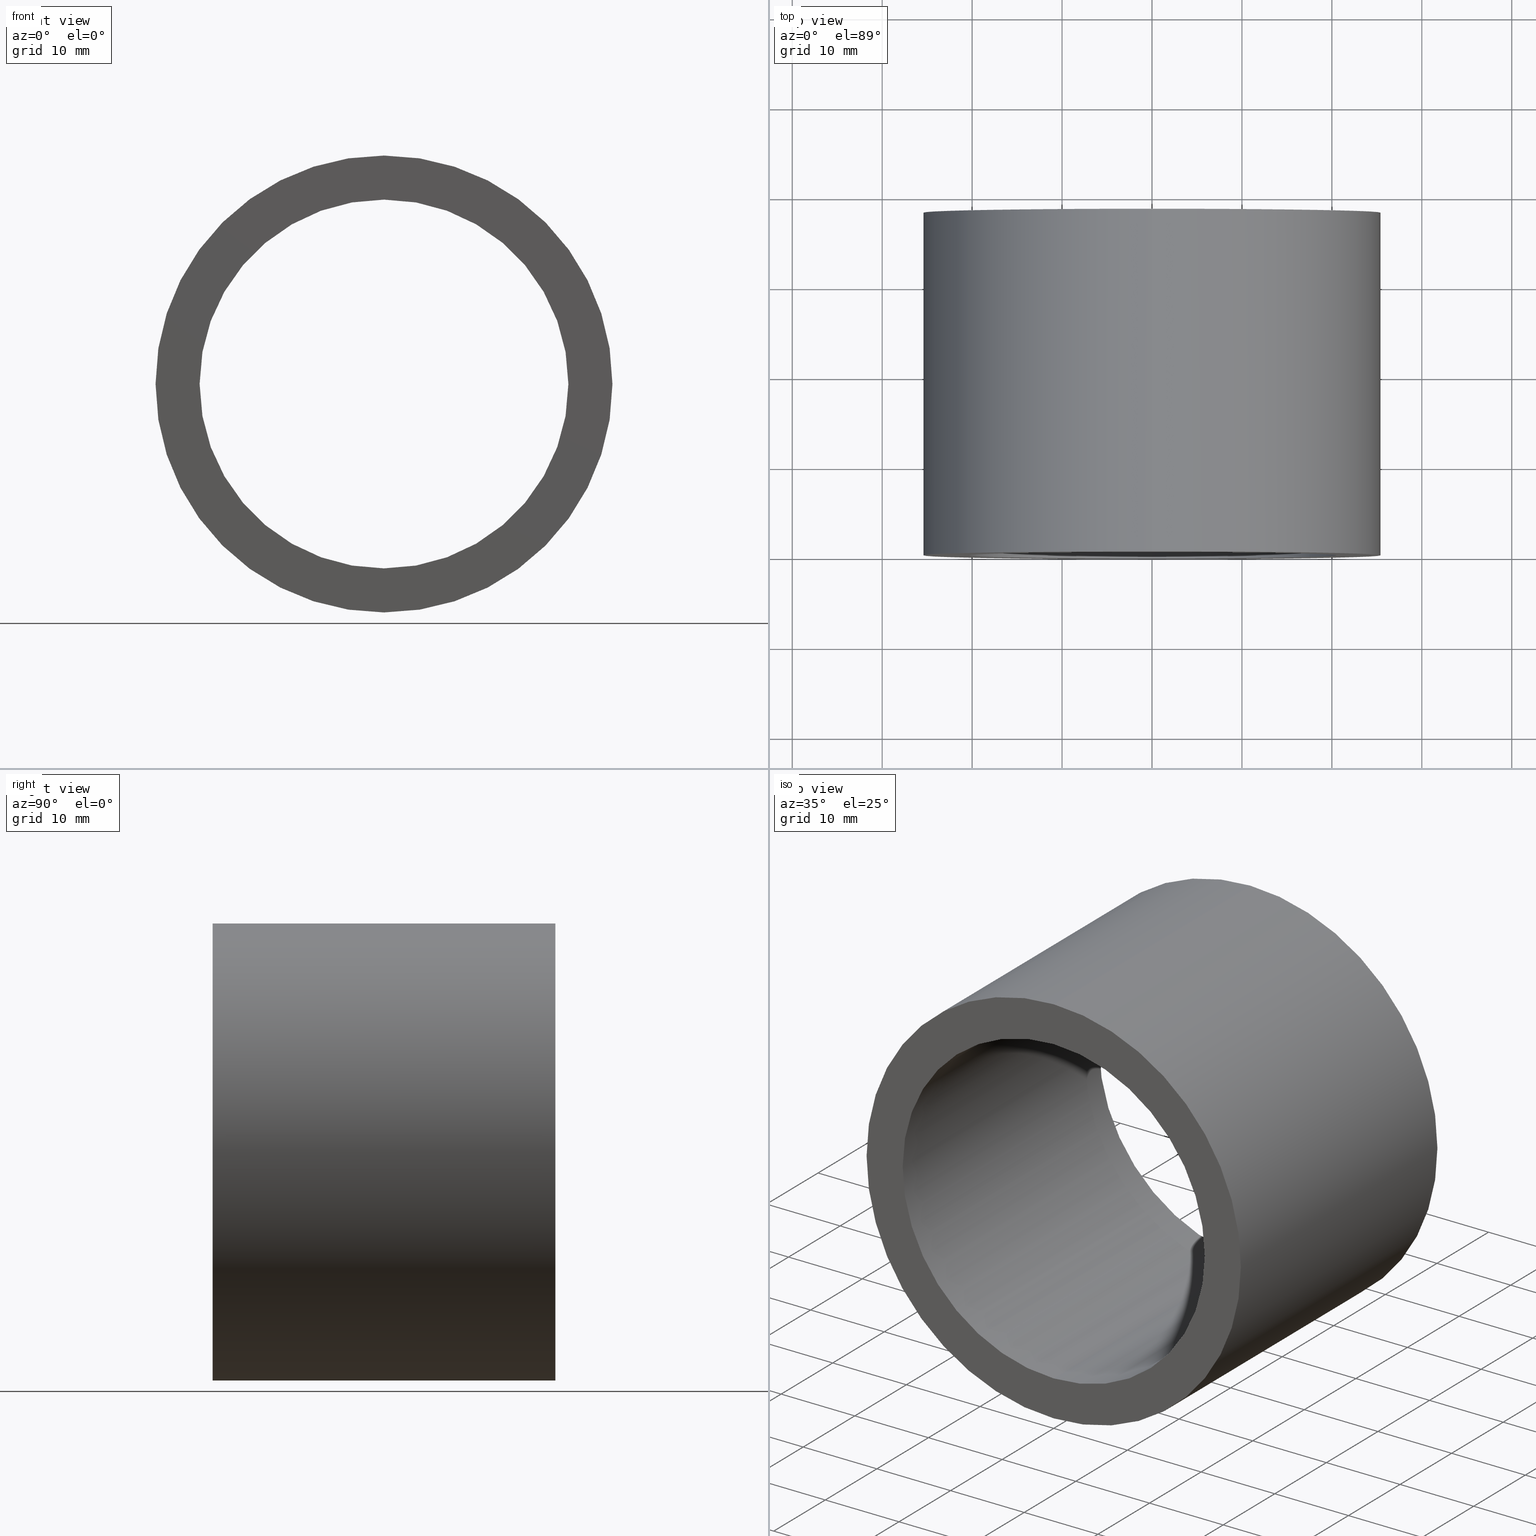
[diagram: canonical four-view strip — front | top / right | iso, engineering-drawing reading convention]
A machine part, canonical four-view strip (front | top / right | iso — engineering-drawing reading convention). The complete STEP part file that produces these views, byte-faithful:
ISO-10303-21;
HEADER;
FILE_DESCRIPTION (( 'STEP AP214' ),
    '1' );
FILE_NAME ('503030.STEP',
    '2019-09-05T07:01:35',
    ( '' ),
    ( '' ),
    'SwSTEP 2.0',
    'SolidWorks 2016',
    '' );
FILE_SCHEMA (( 'AUTOMOTIVE_DESIGN' ));
ENDSEC;

DATA;
#1 = CARTESIAN_POINT ( 'NONE',  ( 0.0000000000000000000, -2.775557561562891400E-014, 0.0000000000000000000 ) ) ;
#2 = FACE_OUTER_BOUND ( 'NONE', #161, .T. ) ;
#3 = SURFACE_STYLE_USAGE ( .BOTH. , #119 ) ;
#4 = UNCERTAINTY_MEASURE_WITH_UNIT (LENGTH_MEASURE( 1.000000000000000100E-005 ), #25, 'distance_accuracy_value', 'NONE');
#5 = MECHANICAL_DESIGN_GEOMETRIC_PRESENTATION_REPRESENTATION (  '', ( #158 ), #150 ) ;
#6 = ORIENTED_EDGE ( 'NONE', *, *, #76, .F. ) ;
#7 = EDGE_CURVE ( 'NONE', #56, #163, #204, .T. ) ;
#8 = ORIENTED_EDGE ( 'NONE', *, *, #162, .F. ) ;
#9 = STYLED_ITEM ( 'NONE', ( #105 ), #191 ) ;
#10 = DIRECTION ( 'NONE',  ( -0.0000000000000000000, 1.000000000000000000, -0.0000000000000000000 ) ) ;
#11 = PRESENTATION_LAYER_ASSIGNMENT (  '', '', ( #144 ) ) ;
#12 = UNCERTAINTY_MEASURE_WITH_UNIT (LENGTH_MEASURE( 1.000000000000000100E-005 ), #98, 'distance_accuracy_value', 'NONE');
#13 = DIRECTION ( 'NONE',  ( -0.0000000000000000000, 1.000000000000000000, -0.0000000000000000000 ) ) ;
#14 = FILL_AREA_STYLE ('',( #134 ) ) ;
#15 = ORIENTED_EDGE ( 'NONE', *, *, #71, .T. ) ;
#16 =( GEOMETRIC_REPRESENTATION_CONTEXT ( 3 ) GLOBAL_UNCERTAINTY_ASSIGNED_CONTEXT ( ( #63 ) ) GLOBAL_UNIT_ASSIGNED_CONTEXT ( ( #94, #64, #141 ) ) REPRESENTATION_CONTEXT ( 'NONE', 'WORKASPACE' ) );
#17 = DIRECTION ( 'NONE',  ( 0.0000000000000000000, 0.0000000000000000000, 1.000000000000000000 ) ) ;
#18 = SURFACE_STYLE_USAGE ( .BOTH. , #221 ) ;
#19 = DIRECTION ( 'NONE',  ( -0.0000000000000000000, 1.000000000000000000, -0.0000000000000000000 ) ) ;
#20 = DIRECTION ( 'NONE',  ( -0.0000000000000000000, 1.000000000000000000, -0.0000000000000000000 ) ) ;
#21 = PRESENTATION_LAYER_ASSIGNMENT (  '', '', ( #158 ) ) ;
#22 = FACE_OUTER_BOUND ( 'NONE', #62, .T. ) ;
#23 = DIRECTION ( 'NONE',  ( 1.000000000000000000, 0.0000000000000000000, 0.0000000000000000000 ) ) ;
#24 = APPLICATION_PROTOCOL_DEFINITION ( 'draft international standard', 'automotive_design', 1998, #143 ) ;
#25 =( LENGTH_UNIT ( ) NAMED_UNIT ( * ) SI_UNIT ( .MILLI., .METRE. ) );
#26 = COLOUR_RGB ( '',1.000000000000000000, 1.000000000000000000, 1.000000000000000000 ) ;
#27 =( GEOMETRIC_REPRESENTATION_CONTEXT ( 3 ) GLOBAL_UNCERTAINTY_ASSIGNED_CONTEXT ( ( #47 ) ) GLOBAL_UNIT_ASSIGNED_CONTEXT ( ( #40, #138, #95 ) ) REPRESENTATION_CONTEXT ( 'NONE', 'WORKASPACE' ) );
#28 = SURFACE_STYLE_FILL_AREA ( #153 ) ;
#29 = VERTEX_POINT ( 'NONE', #164 ) ;
#30 = VERTEX_POINT ( 'NONE', #151 ) ;
#31 = DIRECTION ( 'NONE',  ( -0.0000000000000000000, 1.000000000000000000, 0.0000000000000000000 ) ) ;
#32 = DIRECTION ( 'NONE',  ( -0.0000000000000000000, 1.000000000000000000, -0.0000000000000000000 ) ) ;
#33 = ORIENTED_EDGE ( 'NONE', *, *, #67, .T. ) ;
#34 = CARTESIAN_POINT ( 'NONE',  ( 20.50000000000002100, -1.424099456732195600E-014, 0.0000000000000000000 ) ) ;
#35 = SURFACE_SIDE_STYLE ('',( #28 ) ) ;
#36 = CARTESIAN_POINT ( 'NONE',  ( 0.0000000000000000000, -2.775557561562891400E-014, 0.0000000000000000000 ) ) ;
#37 =( NAMED_UNIT ( * ) SI_UNIT ( $, .STERADIAN. ) SOLID_ANGLE_UNIT ( ) );
#38 = DIRECTION ( 'NONE',  ( 0.0000000000000000000, 0.0000000000000000000, 1.000000000000000000 ) ) ;
#39 = DIRECTION ( 'NONE',  ( 0.0000000000000000000, 0.0000000000000000000, 1.000000000000000000 ) ) ;
#40 =( LENGTH_UNIT ( ) NAMED_UNIT ( * ) SI_UNIT ( .MILLI., .METRE. ) );
#41 =( GEOMETRIC_REPRESENTATION_CONTEXT ( 3 ) GLOBAL_UNCERTAINTY_ASSIGNED_CONTEXT ( ( #93 ) ) GLOBAL_UNIT_ASSIGNED_CONTEXT ( ( #55, #79, #193 ) ) REPRESENTATION_CONTEXT ( 'NONE', 'WORKASPACE' ) );
#42 = ORIENTED_EDGE ( 'NONE', *, *, #67, .F. ) ;
#43 = EDGE_CURVE ( 'NONE', #187, #56, #198, .T. ) ;
#44 = EDGE_LOOP ( 'NONE', ( #89, #87, #15, #102 ) ) ;
#45 = PRODUCT_DEFINITION_FORMATION_WITH_SPECIFIED_SOURCE ( '�κ�', '', #184, .NOT_KNOWN. ) ;
#46 = EDGE_LOOP ( 'NONE', ( #111, #207, #42, #156 ) ) ;
#47 = UNCERTAINTY_MEASURE_WITH_UNIT (LENGTH_MEASURE( 1.000000000000000100E-005 ), #40, 'distance_accuracy_value', 'NONE');
#48 = VERTEX_POINT ( 'NONE', #53 ) ;
#49 = DIRECTION ( 'NONE',  ( -0.0000000000000000000, 1.000000000000000000, -0.0000000000000000000 ) ) ;
#50 = FACE_OUTER_BOUND ( 'NONE', #46, .T. ) ;
#51 = ORIENTED_EDGE ( 'NONE', *, *, #43, .T. ) ;
#52 = AXIS2_PLACEMENT_3D ( 'NONE', #136, #243, #116 ) ;
#53 = CARTESIAN_POINT ( 'NONE',  ( 3.110602869834279600E-015, 38.09999999999999400, -25.40000000000002000 ) ) ;
#54 = DIRECTION ( 'NONE',  ( -0.0000000000000000000, 1.000000000000000000, -0.0000000000000000000 ) ) ;
#55 =( LENGTH_UNIT ( ) NAMED_UNIT ( * ) SI_UNIT ( .MILLI., .METRE. ) );
#56 = VERTEX_POINT ( 'NONE', #167 ) ;
#57 = DIRECTION ( 'NONE',  ( -0.0000000000000000000, 1.000000000000000000, -0.0000000000000000000 ) ) ;
#58 = CARTESIAN_POINT ( 'NONE',  ( 3.110602869834279600E-015, 161.3761669434274500, -25.40000000000002000 ) ) ;
#59 = FILL_AREA_STYLE ('',( #244 ) ) ;
#60 = ADVANCED_FACE ( 'NONE', ( #214, #110 ), #169, .F. ) ;
#61 = AXIS2_PLACEMENT_3D ( 'NONE', #205, #57, #39 ) ;
#62 = EDGE_LOOP ( 'NONE', ( #230, #232, #69, #178 ) ) ;
#63 = UNCERTAINTY_MEASURE_WITH_UNIT (LENGTH_MEASURE( 1.000000000000000100E-005 ), #94, 'distance_accuracy_value', 'NONE');
#64 =( NAMED_UNIT ( * ) PLANE_ANGLE_UNIT ( ) SI_UNIT ( $, .RADIAN. ) );
#65 = CYLINDRICAL_SURFACE ( 'NONE', #146, 20.50000000000001800 ) ;
#66 =( NAMED_UNIT ( * ) SI_UNIT ( $, .STERADIAN. ) SOLID_ANGLE_UNIT ( ) );
#67 = EDGE_CURVE ( 'NONE', #29, #48, #165, .T. ) ;
#68 = APPLICATION_PROTOCOL_DEFINITION ( 'draft international standard', 'automotive_design', 1998, #227 ) ;
#69 = ORIENTED_EDGE ( 'NONE', *, *, #140, .T. ) ;
#70 = AXIS2_PLACEMENT_3D ( 'NONE', #1, #154, #100 ) ;
#71 = EDGE_CURVE ( 'NONE', #212, #29, #168, .T. ) ;
#72 = FACE_OUTER_BOUND ( 'NONE', #107, .T. ) ;
#73 = CARTESIAN_POINT ( 'NONE',  ( 0.0000000000000000000, 38.09999999999999400, 0.0000000000000000000 ) ) ;
#74 = LINE ( 'NONE', #241, #234 ) ;
#75 = CYLINDRICAL_SURFACE ( 'NONE', #220, 25.40000000000002000 ) ;
#76 = EDGE_CURVE ( 'NONE', #155, #212, #127, .T. ) ;
#77 = DIRECTION ( 'NONE',  ( -0.0000000000000000000, 1.000000000000000000, -0.0000000000000000000 ) ) ;
#78 = ADVANCED_FACE ( 'NONE', ( #84 ), #148, .T. ) ;
#79 =( NAMED_UNIT ( * ) PLANE_ANGLE_UNIT ( ) SI_UNIT ( $, .RADIAN. ) );
#80 = PLANE ( 'NONE',  #152 ) ;
#81 = CARTESIAN_POINT ( 'NONE',  ( 0.0000000000000000000, 161.3761669434274500, 0.0000000000000000000 ) ) ;
#82 = CIRCLE ( 'NONE', #185, 20.50000000000001400 ) ;
#83 = FILL_AREA_STYLE ('',( #239 ) ) ;
#84 = FACE_OUTER_BOUND ( 'NONE', #44, .T. ) ;
#85 = PRESENTATION_LAYER_ASSIGNMENT (  '', '', ( #175 ) ) ;
#86 = PRESENTATION_STYLE_ASSIGNMENT (( #224 ) ) ;
#87 = ORIENTED_EDGE ( 'NONE', *, *, #76, .T. ) ;
#88 = AXIS2_PLACEMENT_3D ( 'NONE', #216, #206, #106 ) ;
#89 = ORIENTED_EDGE ( 'NONE', *, *, #237, .F. ) ;
#90 = PRESENTATION_LAYER_ASSIGNMENT (  '', '', ( #9 ) ) ;
#91 = CARTESIAN_POINT ( 'NONE',  ( 0.0000000000000000000, -2.775557561562891400E-014, 0.0000000000000000000 ) ) ;
#92 = DIRECTION ( 'NONE',  ( 0.0000000000000000000, 0.0000000000000000000, 1.000000000000000000 ) ) ;
#93 = UNCERTAINTY_MEASURE_WITH_UNIT (LENGTH_MEASURE( 1.000000000000000100E-005 ), #55, 'distance_accuracy_value', 'NONE');
#94 =( LENGTH_UNIT ( ) NAMED_UNIT ( * ) SI_UNIT ( .MILLI., .METRE. ) );
#95 =( NAMED_UNIT ( * ) SI_UNIT ( $, .STERADIAN. ) SOLID_ANGLE_UNIT ( ) );
#96 = PRODUCT_RELATED_PRODUCT_CATEGORY ( 'part', '', ( #184 ) ) ;
#97 = DIRECTION ( 'NONE',  ( 0.0000000000000000000, 0.0000000000000000000, 1.000000000000000000 ) ) ;
#98 =( LENGTH_UNIT ( ) NAMED_UNIT ( * ) SI_UNIT ( .MILLI., .METRE. ) );
#99 = MECHANICAL_DESIGN_GEOMETRIC_PRESENTATION_REPRESENTATION (  '', ( #175 ), #41 ) ;
#100 = DIRECTION ( 'NONE',  ( 0.0000000000000000000, 0.0000000000000000000, 1.000000000000000000 ) ) ;
#101 = COLOUR_RGB ( '',1.000000000000000000, 1.000000000000000000, 1.000000000000000000 ) ;
#102 = ORIENTED_EDGE ( 'NONE', *, *, #197, .F. ) ;
#103 = AXIS2_PLACEMENT_3D ( 'NONE', #34, #31, #92 ) ;
#104 = EDGE_LOOP ( 'NONE', ( #225, #202 ) ) ;
#105 = PRESENTATION_STYLE_ASSIGNMENT (( #137 ) ) ;
#106 = DIRECTION ( 'NONE',  ( 0.0000000000000000000, 0.0000000000000000000, 1.000000000000000000 ) ) ;
#107 = EDGE_LOOP ( 'NONE', ( #33, #120 ) ) ;
#108 = DIRECTION ( 'NONE',  ( 0.0000000000000000000, 0.0000000000000000000, 1.000000000000000000 ) ) ;
#109 = CARTESIAN_POINT ( 'NONE',  ( 0.0000000000000000000, 161.3761669434274500, 0.0000000000000000000 ) ) ;
#110 = FACE_BOUND ( 'NONE', #145, .T. ) ;
#111 = ORIENTED_EDGE ( 'NONE', *, *, #199, .T. ) ;
#112 = DIRECTION ( 'NONE',  ( 0.0000000000000000000, -1.000000000000000000, 0.0000000000000000000 ) ) ;
#113 = CARTESIAN_POINT ( 'NONE',  ( 0.0000000000000000000, 38.09999999999999400, 0.0000000000000000000 ) ) ;
#114 = ADVANCED_FACE ( 'NONE', ( #181, #72 ), #80, .F. ) ;
#115 = DIRECTION ( 'NONE',  ( 0.0000000000000000000, -0.0000000000000000000, -1.000000000000000000 ) ) ;
#116 = DIRECTION ( 'NONE',  ( 0.0000000000000000000, 0.0000000000000000000, 1.000000000000000000 ) ) ;
#117 = ADVANCED_FACE ( 'NONE', ( #50 ), #75, .T. ) ;
#118 = PRODUCT_CONTEXT ( 'NONE', #143, 'mechanical' ) ;
#119 = SURFACE_SIDE_STYLE ('',( #126 ) ) ;
#120 = ORIENTED_EDGE ( 'NONE', *, *, #197, .T. ) ;
#121 = VECTOR ( 'NONE', #129, 1000.000000000000000 ) ;
#122 = EDGE_CURVE ( 'NONE', #30, #187, #183, .T. ) ;
#123 = CYLINDRICAL_SURFACE ( 'NONE', #52, 20.50000000000001800 ) ;
#124 = ORIENTED_EDGE ( 'NONE', *, *, #199, .F. ) ;
#125 = AXIS2_PLACEMENT_3D ( 'NONE', #109, #49, #235 ) ;
#126 = SURFACE_STYLE_FILL_AREA ( #83 ) ;
#127 = CIRCLE ( 'NONE', #180, 25.40000000000002000 ) ;
#128 = DIRECTION ( 'NONE',  ( -0.0000000000000000000, 1.000000000000000000, -0.0000000000000000000 ) ) ;
#129 = DIRECTION ( 'NONE',  ( -0.0000000000000000000, 1.000000000000000000, -0.0000000000000000000 ) ) ;
#130 = CARTESIAN_POINT ( 'NONE',  ( 0.0000000000000000000, 161.3761669434274500, 25.40000000000002000 ) ) ;
#131 = SHAPE_DEFINITION_REPRESENTATION ( #159, #233 ) ;
#132 = CARTESIAN_POINT ( 'NONE',  ( 0.0000000000000000000, 0.0000000000000000000, 0.0000000000000000000 ) ) ;
#133 = CARTESIAN_POINT ( 'NONE',  ( 0.0000000000000000000, 161.3761669434274500, 0.0000000000000000000 ) ) ;
#134 = FILL_AREA_STYLE_COLOUR ( '', #26 ) ;
#135 =( GEOMETRIC_REPRESENTATION_CONTEXT ( 3 ) GLOBAL_UNCERTAINTY_ASSIGNED_CONTEXT ( ( #12 ) ) GLOBAL_UNIT_ASSIGNED_CONTEXT ( ( #98, #226, #37 ) ) REPRESENTATION_CONTEXT ( 'NONE', 'WORKASPACE' ) );
#136 = CARTESIAN_POINT ( 'NONE',  ( 0.0000000000000000000, 161.3761669434274500, 0.0000000000000000000 ) ) ;
#137 = SURFACE_STYLE_USAGE ( .BOTH. , #211 ) ;
#138 =( NAMED_UNIT ( * ) PLANE_ANGLE_UNIT ( ) SI_UNIT ( $, .RADIAN. ) );
#139 = ADVANCED_FACE ( 'NONE', ( #2 ), #123, .F. ) ;
#140 = EDGE_CURVE ( 'NONE', #163, #56, #82, .T. ) ;
#141 =( NAMED_UNIT ( * ) SI_UNIT ( $, .STERADIAN. ) SOLID_ANGLE_UNIT ( ) );
#142 = ORIENTED_EDGE ( 'NONE', *, *, #122, .T. ) ;
#143 = APPLICATION_CONTEXT ( 'automotive_design' ) ;
#144 = STYLED_ITEM ( 'NONE', ( #86 ), #139 ) ;
#145 = EDGE_LOOP ( 'NONE', ( #177, #142 ) ) ;
#146 = AXIS2_PLACEMENT_3D ( 'NONE', #81, #209, #97 ) ;
#147 = AXIS2_PLACEMENT_3D ( 'NONE', #36, #19, #38 ) ;
#148 = CYLINDRICAL_SURFACE ( 'NONE', #125, 25.40000000000002000 ) ;
#149 = EDGE_LOOP ( 'NONE', ( #124, #6 ) ) ;
#150 =( GEOMETRIC_REPRESENTATION_CONTEXT ( 3 ) GLOBAL_UNCERTAINTY_ASSIGNED_CONTEXT ( ( #4 ) ) GLOBAL_UNIT_ASSIGNED_CONTEXT ( ( #25, #195, #66 ) ) REPRESENTATION_CONTEXT ( 'NONE', 'WORKASPACE' ) );
#151 = CARTESIAN_POINT ( 'NONE',  ( 2.510525938252076500E-015, -2.775557561562891400E-014, -20.50000000000002100 ) ) ;
#152 = AXIS2_PLACEMENT_3D ( 'NONE', #208, #112, #115 ) ;
#153 = FILL_AREA_STYLE ('',( #222 ) ) ;
#154 = DIRECTION ( 'NONE',  ( -0.0000000000000000000, 1.000000000000000000, -0.0000000000000000000 ) ) ;
#155 = VERTEX_POINT ( 'NONE', #170 ) ;
#156 = ORIENTED_EDGE ( 'NONE', *, *, #71, .F. ) ;
#157 = LINE ( 'NONE', #58, #203 ) ;
#158 = STYLED_ITEM ( 'NONE', ( #219 ), #233 ) ;
#159 = PRODUCT_DEFINITION_SHAPE ( 'NONE', 'NONE',  #188 ) ;
#160 = CIRCLE ( 'NONE', #61, 25.40000000000002000 ) ;
#161 = EDGE_LOOP ( 'NONE', ( #8, #236, #51, #242 ) ) ;
#162 = EDGE_CURVE ( 'NONE', #30, #163, #74, .T. ) ;
#163 = VERTEX_POINT ( 'NONE', #190 ) ;
#164 = CARTESIAN_POINT ( 'NONE',  ( 0.0000000000000000000, 38.09999999999999400, 25.40000000000002000 ) ) ;
#165 = CIRCLE ( 'NONE', #88, 25.40000000000002000 ) ;
#166 = MANIFOLD_SOLID_BREP ( '��ת1', #217 ) ;
#167 = CARTESIAN_POINT ( 'NONE',  ( 0.0000000000000000000, 38.09999999999999400, 20.50000000000001400 ) ) ;
#168 = LINE ( 'NONE', #130, #229 ) ;
#169 = PLANE ( 'NONE',  #103 ) ;
#170 = CARTESIAN_POINT ( 'NONE',  ( 3.110602869834279600E-015, -2.775557561562891400E-014, -25.40000000000002000 ) ) ;
#171 = CARTESIAN_POINT ( 'NONE',  ( 0.0000000000000000000, -2.775557561562891400E-014, 20.50000000000002100 ) ) ;
#172 = CARTESIAN_POINT ( 'NONE',  ( 0.0000000000000000000, -2.775557561562891400E-014, 25.40000000000002000 ) ) ;
#173 = DIRECTION ( 'NONE',  ( 0.0000000000000000000, 0.0000000000000000000, 1.000000000000000000 ) ) ;
#174 = EDGE_CURVE ( 'NONE', #187, #30, #200, .T. ) ;
#175 = STYLED_ITEM ( 'NONE', ( #238 ), #166 ) ;
#176 = PRODUCT_DEFINITION_CONTEXT ( 'detailed design', #227, 'design' ) ;
#177 = ORIENTED_EDGE ( 'NONE', *, *, #174, .T. ) ;
#178 = ORIENTED_EDGE ( 'NONE', *, *, #43, .F. ) ;
#179 = AXIS2_PLACEMENT_3D ( 'NONE', #132, #228, #23 ) ;
#180 = AXIS2_PLACEMENT_3D ( 'NONE', #91, #10, #108 ) ;
#181 = FACE_BOUND ( 'NONE', #104, .T. ) ;
#182 = SURFACE_STYLE_FILL_AREA ( #59 ) ;
#183 = CIRCLE ( 'NONE', #147, 20.50000000000002100 ) ;
#184 = PRODUCT ( '503030', '503030', '', ( #118 ) ) ;
#185 = AXIS2_PLACEMENT_3D ( 'NONE', #113, #20, #173 ) ;
#186 = CARTESIAN_POINT ( 'NONE',  ( 0.0000000000000000000, 161.3761669434274500, 20.50000000000001800 ) ) ;
#187 = VERTEX_POINT ( 'NONE', #171 ) ;
#188 = PRODUCT_DEFINITION ( 'δ֪', '', #45, #176 ) ;
#189 = AXIS2_PLACEMENT_3D ( 'NONE', #73, #32, #218 ) ;
#190 = CARTESIAN_POINT ( 'NONE',  ( 2.510525938252075700E-015, 38.09999999999999400, -20.50000000000001400 ) ) ;
#191 = ADVANCED_FACE ( 'NONE', ( #22 ), #65, .F. ) ;
#192 = DIRECTION ( 'NONE',  ( 0.0000000000000000000, 0.0000000000000000000, 1.000000000000000000 ) ) ;
#193 =( NAMED_UNIT ( * ) SI_UNIT ( $, .STERADIAN. ) SOLID_ANGLE_UNIT ( ) );
#194 = CIRCLE ( 'NONE', #210, 25.40000000000002000 ) ;
#195 =( NAMED_UNIT ( * ) PLANE_ANGLE_UNIT ( ) SI_UNIT ( $, .RADIAN. ) );
#196 = MECHANICAL_DESIGN_GEOMETRIC_PRESENTATION_REPRESENTATION (  '', ( #9 ), #135 ) ;
#197 = EDGE_CURVE ( 'NONE', #48, #29, #160, .T. ) ;
#198 = LINE ( 'NONE', #186, #121 ) ;
#199 = EDGE_CURVE ( 'NONE', #212, #155, #194, .T. ) ;
#200 = CIRCLE ( 'NONE', #70, 20.50000000000002100 ) ;
#201 = MECHANICAL_DESIGN_GEOMETRIC_PRESENTATION_REPRESENTATION (  '', ( #144 ), #27 ) ;
#202 = ORIENTED_EDGE ( 'NONE', *, *, #140, .F. ) ;
#203 = VECTOR ( 'NONE', #54, 1000.000000000000000 ) ;
#204 = CIRCLE ( 'NONE', #189, 20.50000000000001400 ) ;
#205 = CARTESIAN_POINT ( 'NONE',  ( 0.0000000000000000000, 38.09999999999999400, 0.0000000000000000000 ) ) ;
#206 = DIRECTION ( 'NONE',  ( -0.0000000000000000000, 1.000000000000000000, -0.0000000000000000000 ) ) ;
#207 = ORIENTED_EDGE ( 'NONE', *, *, #237, .T. ) ;
#208 = CARTESIAN_POINT ( 'NONE',  ( 20.50000000000001400, 38.09999999999998700, 0.0000000000000000000 ) ) ;
#209 = DIRECTION ( 'NONE',  ( -0.0000000000000000000, 1.000000000000000000, -0.0000000000000000000 ) ) ;
#210 = AXIS2_PLACEMENT_3D ( 'NONE', #223, #77, #192 ) ;
#211 = SURFACE_SIDE_STYLE ('',( #231 ) ) ;
#212 = VERTEX_POINT ( 'NONE', #172 ) ;
#213 = COLOUR_RGB ( '',1.000000000000000000, 1.000000000000000000, 1.000000000000000000 ) ;
#214 = FACE_OUTER_BOUND ( 'NONE', #149, .T. ) ;
#215 = COLOUR_RGB ( '',1.000000000000000000, 1.000000000000000000, 1.000000000000000000 ) ;
#216 = CARTESIAN_POINT ( 'NONE',  ( 0.0000000000000000000, 38.09999999999999400, 0.0000000000000000000 ) ) ;
#217 = CLOSED_SHELL ( 'NONE', ( #191, #117, #60, #78, #114, #139 ) ) ;
#218 = DIRECTION ( 'NONE',  ( 0.0000000000000000000, 0.0000000000000000000, 1.000000000000000000 ) ) ;
#219 = PRESENTATION_STYLE_ASSIGNMENT (( #3 ) ) ;
#220 = AXIS2_PLACEMENT_3D ( 'NONE', #133, #240, #17 ) ;
#221 = SURFACE_SIDE_STYLE ('',( #182 ) ) ;
#222 = FILL_AREA_STYLE_COLOUR ( '', #101 ) ;
#223 = CARTESIAN_POINT ( 'NONE',  ( 0.0000000000000000000, -2.775557561562891400E-014, 0.0000000000000000000 ) ) ;
#224 = SURFACE_STYLE_USAGE ( .BOTH. , #35 ) ;
#225 = ORIENTED_EDGE ( 'NONE', *, *, #7, .F. ) ;
#226 =( NAMED_UNIT ( * ) PLANE_ANGLE_UNIT ( ) SI_UNIT ( $, .RADIAN. ) );
#227 = APPLICATION_CONTEXT ( 'automotive_design' ) ;
#228 = DIRECTION ( 'NONE',  ( 0.0000000000000000000, 0.0000000000000000000, 1.000000000000000000 ) ) ;
#229 = VECTOR ( 'NONE', #128, 1000.000000000000000 ) ;
#230 = ORIENTED_EDGE ( 'NONE', *, *, #122, .F. ) ;
#231 = SURFACE_STYLE_FILL_AREA ( #14 ) ;
#232 = ORIENTED_EDGE ( 'NONE', *, *, #162, .T. ) ;
#233 = ADVANCED_BREP_SHAPE_REPRESENTATION ( '503030', ( #166, #179 ), #16 ) ;
#234 = VECTOR ( 'NONE', #13, 1000.000000000000000 ) ;
#235 = DIRECTION ( 'NONE',  ( 0.0000000000000000000, 0.0000000000000000000, 1.000000000000000000 ) ) ;
#236 = ORIENTED_EDGE ( 'NONE', *, *, #174, .F. ) ;
#237 = EDGE_CURVE ( 'NONE', #155, #48, #157, .T. ) ;
#238 = PRESENTATION_STYLE_ASSIGNMENT (( #18 ) ) ;
#239 = FILL_AREA_STYLE_COLOUR ( '', #215 ) ;
#240 = DIRECTION ( 'NONE',  ( -0.0000000000000000000, 1.000000000000000000, -0.0000000000000000000 ) ) ;
#241 = CARTESIAN_POINT ( 'NONE',  ( 2.510525938252076100E-015, 161.3761669434274500, -20.50000000000001800 ) ) ;
#242 = ORIENTED_EDGE ( 'NONE', *, *, #7, .T. ) ;
#243 = DIRECTION ( 'NONE',  ( -0.0000000000000000000, 1.000000000000000000, -0.0000000000000000000 ) ) ;
#244 = FILL_AREA_STYLE_COLOUR ( '', #213 ) ;
ENDSEC;
END-ISO-10303-21;
